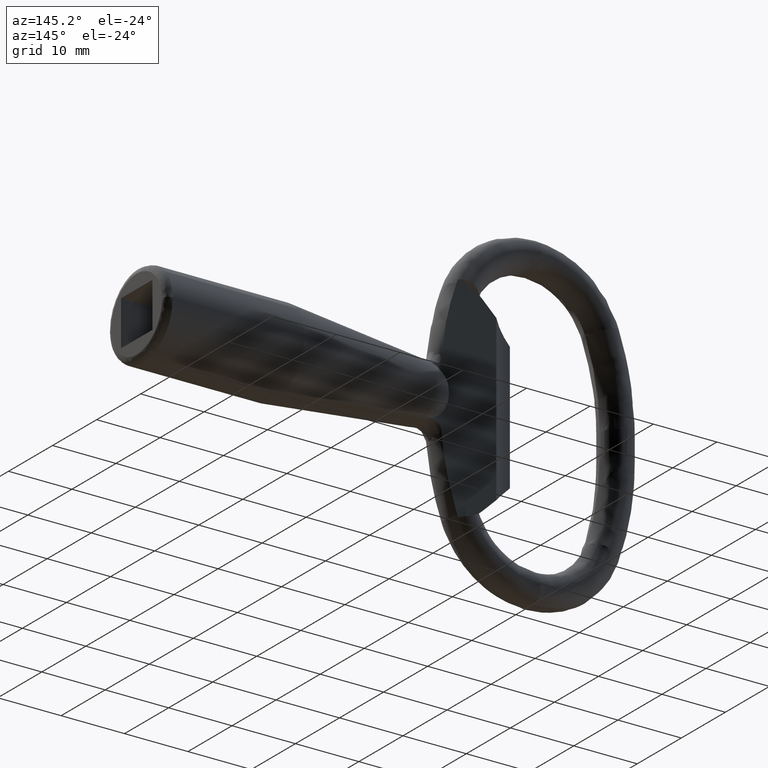
[diagram: clean part render]
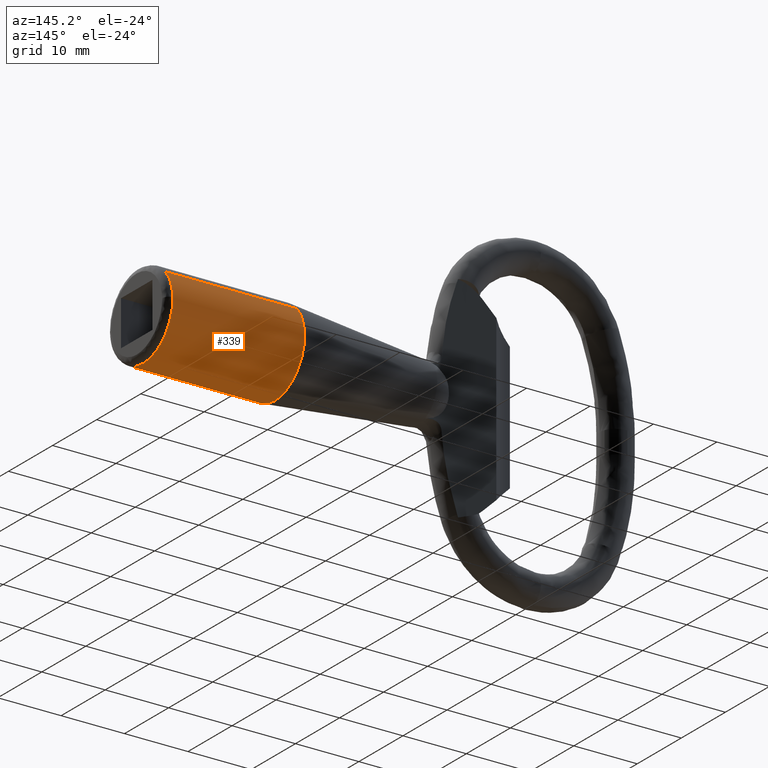
[diagram: same view with one face highlighted and labeled with its STEP entity id]
A machine part, auxiliary view. The second image highlights one B-rep face of the part: STEP entity #339.
In plain terms, the highlighted face is a freeform B-spline surface patch.
Its self-contained STEP definition (entity closure, byte-faithful):
#226=CARTESIAN_POINT('',(-0.701946432314865,5.104301714421768,4.416746372227323));
#227=CARTESIAN_POINT('',(-0.701946432314865,9.037377703547707,-0.128591942982001));
#228=CARTESIAN_POINT('',(-0.701946432314865,4.976569840803758,-4.560186084803410));
#229=CARTESIAN_POINT('',(-0.701946432314865,0.416383756000347,-9.536755925607169));
#230=CARTESIAN_POINT('',(-0.701946432314865,-4.560186084803410,-4.976569840803758));
#231=CARTESIAN_POINT('',(-22.532452399762910,5.104301714421768,4.416746372227323));
#232=CARTESIAN_POINT('',(-22.532452399762910,9.037377703547707,-0.128591942982001));
#233=CARTESIAN_POINT('',(-22.532452399762910,4.976569840803758,-4.560186084803410));
#234=CARTESIAN_POINT('',(-22.532452399762910,0.416383756000347,-9.536755925607169));
#235=CARTESIAN_POINT('',(-22.532452399762910,-4.560186084803410,-4.976569840803758));
#243=(BOUNDED_SURFACE()B_SPLINE_SURFACE(2,1,((#226,#231),(#227,#232),(#228,#233),(#229,#234),(#230,#235)),.UNSPECIFIED.,.F.,.F.,.U.)B_SPLINE_SURFACE_WITH_KNOTS((3,2,3),(2,2),(0.0,10.288957002749219,21.472605918780982),(0.0,21.830505967448051),.UNSPECIFIED.)GEOMETRIC_REPRESENTATION_ITEM()RATIONAL_B_SPLINE_SURFACE(((0.956886118190660,0.956886118190660),(0.730538238691624,0.730538238691624),(1.0,1.0),(0.707106781186548,0.707106781186548),(1.0,1.0)))REPRESENTATION_ITEM('')SURFACE());
#244=CARTESIAN_POINT('',(-1.221411179089196,5.104302411089551,4.416745567106242));
#245=VERTEX_POINT('',#244);
#246=CARTESIAN_POINT('',(-1.221411178714581,6.747797522489963,0.169626365612428));
#247=VERTEX_POINT('',#246);
#248=CARTESIAN_POINT('',(-1.221411179089197,5.104302411089551,4.416745567106242));
#249=CARTESIAN_POINT('',(-1.221411178927865,6.687013070909517,2.587653600124568));
#250=CARTESIAN_POINT('',(-1.221411178714581,6.747797522489963,0.169626365612428));
#258=(BOUNDED_CURVE()B_SPLINE_CURVE(2,(#248,#249,#250),.UNSPECIFIED.,.F.,.U.)B_SPLINE_CURVE_WITH_KNOTS((3,3),(0.135882143779628,0.245579891768986),.UNSPECIFIED.)CURVE()GEOMETRIC_REPRESENTATION_ITEM()RATIONAL_B_SPLINE_CURVE((0.854663301743958,0.865851791453706,0.989826157679720))REPRESENTATION_ITEM(''));
#259=EDGE_CURVE('',#245,#247,#258,.T.);
#260=ORIENTED_EDGE('',*,*,#259,.T.);
#261=CARTESIAN_POINT('',(-1.221411179295004,0.0,-6.749929222475800));
#262=VERTEX_POINT('',#261);
#263=CARTESIAN_POINT('',(-1.221411178714581,6.747797522489963,0.169626365612428));
#264=CARTESIAN_POINT('',(-1.221411179295004,6.749929222475800,0.084826577385237));
#265=CARTESIAN_POINT('',(-1.221411179295004,6.749929222475800,0.0));
#266=CARTESIAN_POINT('',(-1.221411179295004,6.749929222475800,-6.749929222475800));
#267=CARTESIAN_POINT('',(-1.221411179295004,0.0,-6.749929222475800));
#275=(BOUNDED_CURVE()B_SPLINE_CURVE(2,(#263,#264,#265,#266,#267),.UNSPECIFIED.,.F.,.U.)B_SPLINE_CURVE_WITH_KNOTS((3,2,3),(0.245579891768986,0.250000000000000,0.500000000000000),.UNSPECIFIED.)CURVE()GEOMETRIC_REPRESENTATION_ITEM()RATIONAL_B_SPLINE_CURVE((0.989826157679720,0.994821521090858,1.0,0.707106781186548,1.0))REPRESENTATION_ITEM(''));
#276=EDGE_CURVE('',#247,#262,#275,.T.);
#277=ORIENTED_EDGE('',*,*,#276,.T.);
#278=CARTESIAN_POINT('',(-1.221411179138580,-4.560185348741700,-4.976570515277787));
#279=VERTEX_POINT('',#278);
#280=CARTESIAN_POINT('',(-1.221411179295004,0.0,-6.749929222475800));
#281=CARTESIAN_POINT('',(-1.221411179295004,-2.624902766805406,-6.749929222475800));
#282=CARTESIAN_POINT('',(-1.221411179138580,-4.560185348741700,-4.976570515277787));
#290=(BOUNDED_CURVE()B_SPLINE_CURVE(2,(#280,#281,#282),.UNSPECIFIED.,.F.,.U.)B_SPLINE_CURVE_WITH_KNOTS((3,3),(0.500000000000000,0.618415164428409),.UNSPECIFIED.)CURVE()GEOMETRIC_REPRESENTATION_ITEM()RATIONAL_B_SPLINE_CURVE((1.0,0.861268005336956,0.853959786349956))REPRESENTATION_ITEM(''));
#291=EDGE_CURVE('',#262,#279,#290,.T.);
#292=ORIENTED_EDGE('',*,*,#291,.T.);
#293=CARTESIAN_POINT('',(-22.000001034703189,-4.560185261996400,-4.976570594767188));
#294=VERTEX_POINT('',#293);
#295=CARTESIAN_POINT('',(-1.221411179138580,-4.560185348741700,-4.976570515277787));
#296=CARTESIAN_POINT('',(-22.000001034703189,-4.560185261996400,-4.976570594767188));
#297=QUASI_UNIFORM_CURVE('',1,(#295,#296),.UNSPECIFIED.,.F.,.U.);
#298=EDGE_CURVE('',#279,#294,#297,.T.);
#299=ORIENTED_EDGE('',*,*,#298,.T.);
#300=CARTESIAN_POINT('',(-22.000001034703200,0.0,-6.749929222475710));
#301=VERTEX_POINT('',#300);
#302=CARTESIAN_POINT('',(-22.000001034703200,0.0,-6.749929222475710));
#303=CARTESIAN_POINT('',(-22.000001034703200,-2.624903273745144,-6.749929222475711));
#304=CARTESIAN_POINT('',(-22.000001034703196,-4.560185261996445,-4.976570594767240));
#312=(BOUNDED_CURVE()B_SPLINE_CURVE(2,(#302,#303,#304),.UNSPECIFIED.,.F.,.U.)B_SPLINE_CURVE_WITH_KNOTS((3,3),(0.500000000000000,0.618415184124896),.UNSPECIFIED.)CURVE()GEOMETRIC_REPRESENTATION_ITEM()RATIONAL_B_SPLINE_CURVE((1.0,0.861267982261086,0.853959783918747))REPRESENTATION_ITEM(''));
#313=EDGE_CURVE('',#301,#294,#312,.T.);
#314=ORIENTED_EDGE('',*,*,#313,.F.);
#315=CARTESIAN_POINT('',(-22.000001034703200,5.104302173796601,4.416745841341411));
#316=VERTEX_POINT('',#315);
#317=CARTESIAN_POINT('',(-22.000001034703200,5.104302173796601,4.416745841341411));
#318=CARTESIAN_POINT('',(-22.000001034703203,6.749929222475711,2.514943068628600));
#319=CARTESIAN_POINT('',(-22.000001034703200,6.749929222475710,0.0));
#320=CARTESIAN_POINT('',(-22.000001034703196,6.749929222475709,-6.749929222475709));
#321=CARTESIAN_POINT('',(-22.000001034703200,0.0,-6.749929222475710));
#329=(BOUNDED_CURVE()B_SPLINE_CURVE(2,(#317,#318,#319,#320,#321),.UNSPECIFIED.,.F.,.U.)B_SPLINE_CURVE_WITH_KNOTS((3,2,3),(0.135882151376481,0.250000000000000,0.500000000000000),.UNSPECIFIED.)CURVE()GEOMETRIC_REPRESENTATION_ITEM()RATIONAL_B_SPLINE_CURVE((0.854663303293623,0.866302623970365,1.0,0.707106781186547,1.0))REPRESENTATION_ITEM(''));
#330=EDGE_CURVE('',#316,#301,#329,.T.);
#331=ORIENTED_EDGE('',*,*,#330,.F.);
#332=CARTESIAN_POINT('',(-1.221411179089196,5.104302411089551,4.416745567106242));
#333=CARTESIAN_POINT('',(-22.000001034703200,5.104302173796601,4.416745841341411));
#334=QUASI_UNIFORM_CURVE('',1,(#332,#333),.UNSPECIFIED.,.F.,.U.);
#335=EDGE_CURVE('',#245,#316,#334,.T.);
#336=ORIENTED_EDGE('',*,*,#335,.F.);
#337=EDGE_LOOP('',(#260,#277,#292,#299,#314,#331,#336));
#338=FACE_OUTER_BOUND('',#337,.T.);
#339=ADVANCED_FACE('',(#338),#243,.T.);